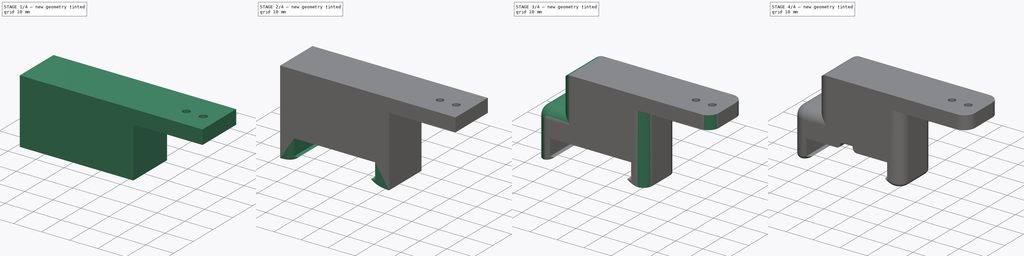
[diagram: build sequence overview — one tinted view per stage of 4, left to right]
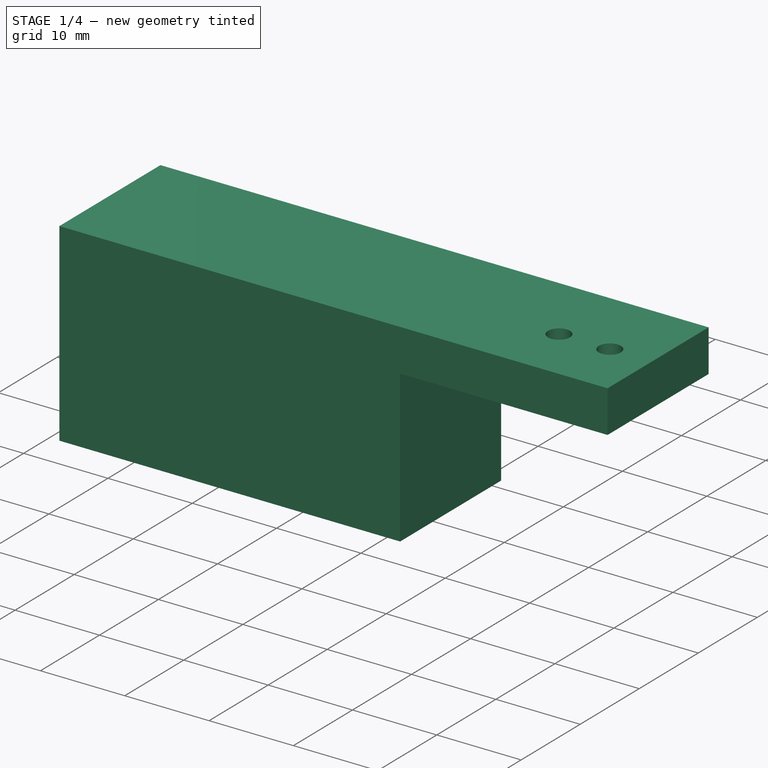
[diagram: stage 1 of 4 — iso view after this stage's code; geometry added in this stage tinted green]
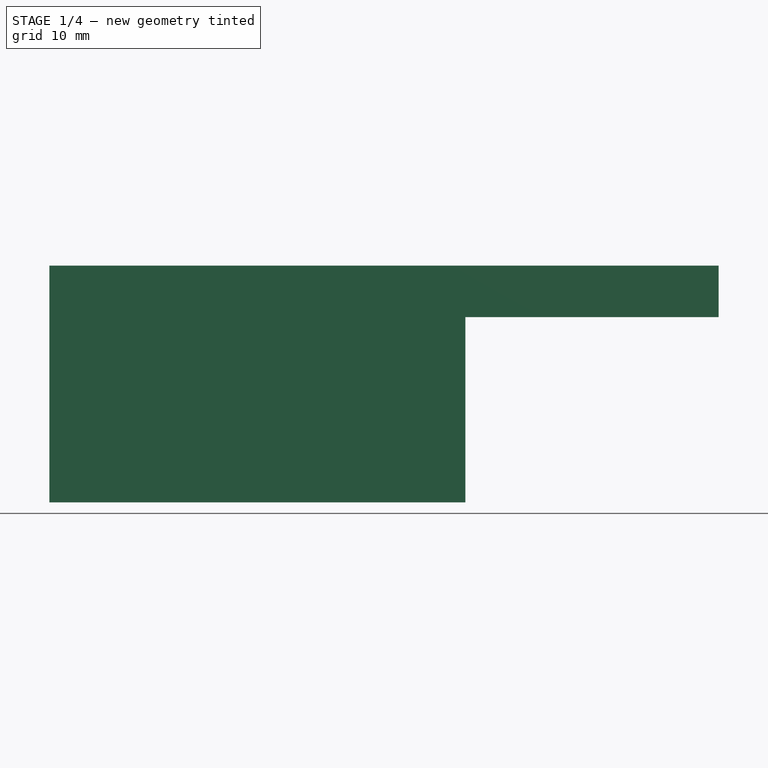
[diagram: stage 1 of 4 — front view after this stage's code; geometry added in this stage tinted green]
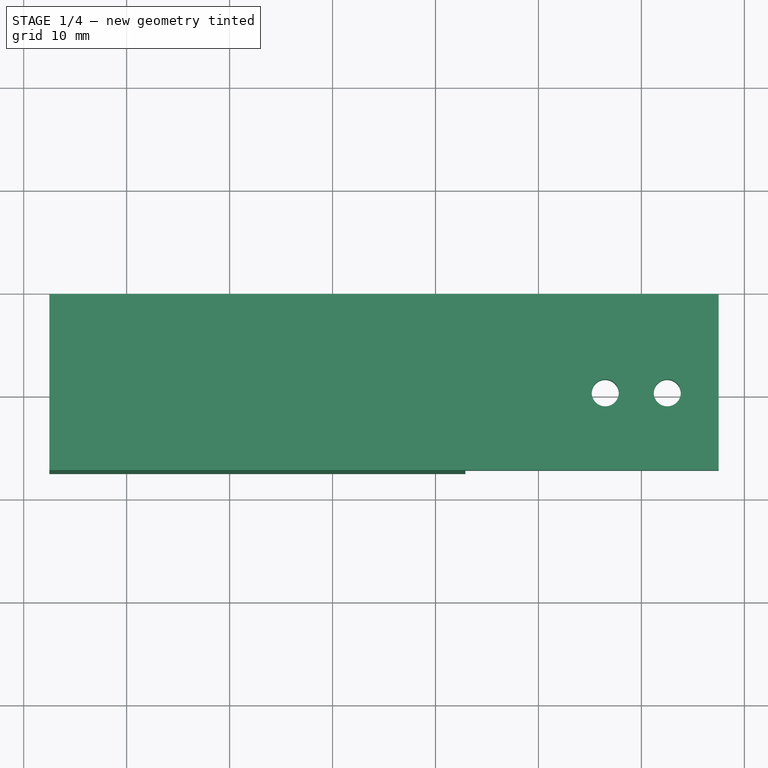
[diagram: stage 1 of 4 — top view after this stage's code; geometry added in this stage tinted green]
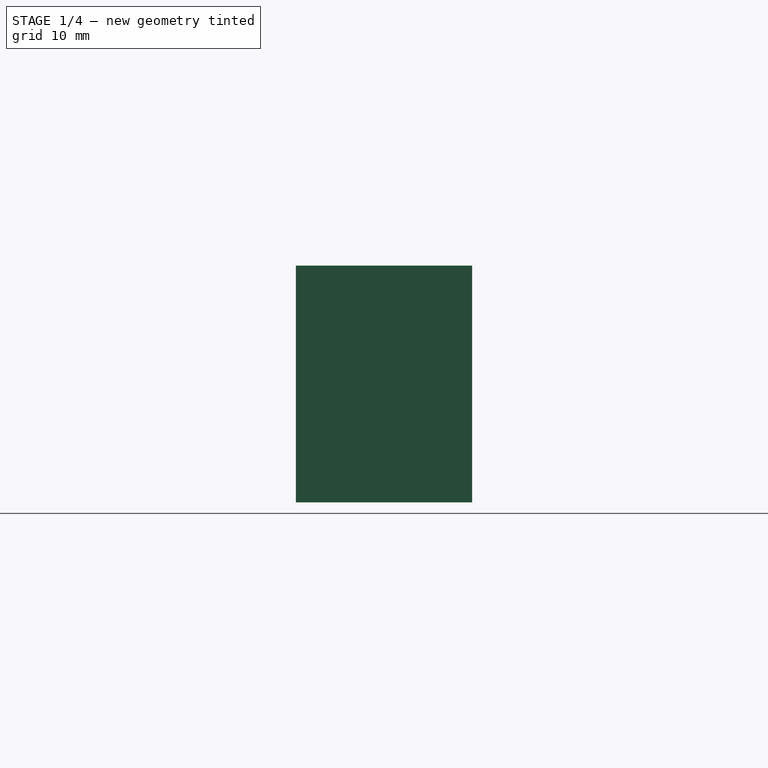
[diagram: stage 1 of 4 — right view after this stage's code; geometry added in this stage tinted green]
FCSTD DOCUMENT  (FreeCAD 2024.1R35694 (Git))
Label: Cable-Clip
License: All rights reserved
LicenseURL: https://en.wikipedia.org/wiki/All_rights_reserved
objects: Sketcher::SketchObject×8, PartDesign::Pad×5, PartDesign::Pocket×3, PartDesign::Fillet×3, Spreadsheet::Sheet×1, PartDesign::Body×1
note: 31 computed .brp shape members not serialized (recipe doc carries the construction recipe); baked Part::Feature solids carry a one-line shape summary decoded from their .brp

FEATURE [Sketcher::SketchObject] Sketch
  FullyConstrained = false
  MapMode = 5
  Support = -> [XY_Plane]
  sketch-geometry (4):
    g0: Circle CenterX=-13.5123 CenterY=0 CenterZ=0 NormalX=0 NormalY=0 NormalZ=1 AngleXU=0 Radius=1.3125
    g1: Circle CenterX=-7.48733 CenterY=0 CenterZ=0 NormalX=0 NormalY=0 NormalZ=1 AngleXU=0 Radius=1.3125
    g2: LineSegment StartX=-14.8248 StartY=0 StartZ=0 EndX=-6.17483 EndY=0 EndZ=0
    g3: GeomPoint X=-10.4998 Y=0 Z=0
  constraints (10):
    c: PointOnObject(g0,g-1)
    c: PointOnObject(g1,g-1)
    c: Distance(g0,g1) = 3.4
    c: Equal(g0,g1)
    c: Distance(g2) = 8.65
    c: PointOnObject(g2,g-1)
    c: Symmetric(g0,g1,g3)
    c: Symmetric(g2,g2,g3)
    c: PointOnObject(g2,g0)
    c: DistanceX(g0,g1) = 6.025
FEATURE [Sketcher::SketchObject] Sketch002
  ExternalGeometry = -> [Sketch]
  FullyConstrained = false
  MapMode = 5
  Support = -> [XY_Plane]
  expr: Constraints[34] = <<Spreadsheet>>.offset_x
  expr: Constraints[37] = <<Spreadsheet>>.offset_y
  sketch-geometry (23):
    g0: LineSegment StartX=-32.3035 StartY=7.06944 StartZ=0 EndX=-62.3035 EndY=7.06944 EndZ=0
    g1: LineSegment StartX=-62.3035 StartY=7.06944 StartZ=0 EndX=-62.3035 EndY=-6.93056 EndZ=0
    g2: LineSegment StartX=-62.3035 StartY=-6.93056 StartZ=0 EndX=-32.3035 EndY=-6.93056 EndZ=0
    g3: LineSegment StartX=-32.3035 StartY=-6.93056 StartZ=0 EndX=-32.3035 EndY=7.06944 EndZ=0
    g4: LineSegment StartX=-32.3035 StartY=7.63887 StartZ=0 EndX=-32.3035 EndY=-7.5 EndZ=0
    g5: LineSegment StartX=-32.3035 StartY=-7.5 StartZ=0 EndX=-27.0998 EndY=-7.5 EndZ=0
    g6: LineSegment StartX=-27.0998 StartY=-7.5 StartZ=0 EndX=-27.0998 EndY=7.63887 EndZ=0
    g7: LineSegment StartX=-27.0998 StartY=7.63887 StartZ=0 EndX=-32.3035 EndY=7.63887 EndZ=0
    g8: LineSegment StartX=-62.3035 StartY=7.63887 StartZ=0 EndX=-67.5072 EndY=7.63887 EndZ=0
    g9: LineSegment StartX=-67.5072 StartY=7.63887 StartZ=0 EndX=-67.5072 EndY=-7.5 EndZ=0
    g10: LineSegment StartX=-67.5072 StartY=-7.5 StartZ=0 EndX=-62.3035 EndY=-7.5 EndZ=0
    g11: LineSegment StartX=-62.3035 StartY=-7.5 StartZ=0 EndX=-62.3035 EndY=7.63887 EndZ=0
    g12: GeomPoint X=-32.3035 Y=0.0694369 Z=0
    g13: LineSegment StartX=-10.4998 StartY=0 StartZ=0 EndX=-27.0998 EndY=0 EndZ=0
    g14: LineSegment StartX=-27.0998 StartY=0 StartZ=0 EndX=-27.0998 EndY=-7.5 EndZ=0
    g15: LineSegment StartX=-67.5072 StartY=7.63887 StartZ=0 EndX=-67.5072 EndY=-7.5 EndZ=0
    g16: LineSegment StartX=-67.5072 StartY=-7.5 StartZ=0 EndX=-27.0998 EndY=-7.5 EndZ=0
    g17: LineSegment StartX=-27.0998 StartY=-7.5 StartZ=0 EndX=-27.0998 EndY=7.63887 EndZ=0
    g18: LineSegment StartX=-27.0998 StartY=7.63887 StartZ=0 EndX=-67.5072 EndY=7.63887 EndZ=0
    g19: LineSegment StartX=-67.5072 StartY=-7.5 StartZ=0 EndX=-67.5072 EndY=-7.5 EndZ=0
    g20: LineSegment StartX=-27.0998 StartY=-7.5 StartZ=0 EndX=-27.0998 EndY=-7.5 EndZ=0
    g21: LineSegment StartX=-62.3035 StartY=7.06944 StartZ=0 EndX=-62.3035 EndY=7.63887 EndZ=0
    g22: LineSegment StartX=-62.3035 StartY=-6.93056 StartZ=0 EndX=-62.3035 EndY=-7.5 EndZ=0
  constraints (63):
    c: Coincident(g0,g1)
    c: Coincident(g1,g2)
    c: Coincident(g2,g3)
    c: Coincident(g3,g0)
    c: Horizontal(g0)
    c: Horizontal(g2)
    c: Vertical(g1)
    c: Vertical(g3)
    c: Distance(g1,g3) = 30
    c: DistanceY(g1,g1) = 14
    c: Coincident(g4,g5)
    c: Coincident(g5,g6)
    c: Coincident(g6,g7)
    c: Coincident(g7,g4)
    c: Vertical(g4)
    c: Vertical(g6)
    c: Horizontal(g5)
    c: Horizontal(g7)
    c: Coincident(g8,g9)
    c: Coincident(g9,g10)
    c: Coincident(g10,g11)
    c: Coincident(g11,g8)
    c: Horizontal(g8)
    c: Horizontal(g10)
    c: Vertical(g9)
    c: Vertical(g11)
    c: PointOnObject(g8,g1)
    c: Equal(g7,g8)
    c: Equal(g6,g9)
    c: Symmetric(g4,g4,g12)
    c: Symmetric(g2,g0,g12)
    c: PointOnObject(g4,g8)
    c: Coincident(g13,g-3)
    c: PointOnObject(g13,g-1)
    c: DistanceX(g13,g13) = 16.6
    c: Vertical(g14)
    c: Coincident(g14,g13)
    c: DistanceY(g14,g14) = 7.5
    c: Coincident(g15,g16)
    c: Coincident(g16,g17)
    c: Coincident(g17,g18)
    c: Coincident(g18,g15)
    c: Vertical(g15)
    c: Vertical(g17)
    c: Horizontal(g16)
    c: Horizontal(g18)
    c: Coincident(g16,g14)
    c: Horizontal(g19)
    c: Coincident(g19,g9)
    c: PointOnObject(g19,g15)
    c: Horizontal(g20)
    c: Coincident(g20,g5)
    c: PointOnObject(g20,g17)
    c: Equal(g19,g20)
    c: Vertical(g21)
    c: Coincident(g21,g0)
    c: PointOnObject(g21,g18)
    c: Vertical(g22)
    c: Coincident(g22,g1)
    c: PointOnObject(g22,g16)
    c: Equal(g22,g21)
    c: PointOnObject(g17,g7)
    c: PointOnObject(g14,g6)
FEATURE [Spreadsheet::Sheet] Spreadsheet
  cells = B4(offset_x)=16.6; C4='offset_x; B5(offset_y)=7.5; C5='offset_y
FEATURE [Sketcher::SketchObject] Sketch003
  ExternalGeometry = -> [Sketch002,Sketch]
  FullyConstrained = false
  MapMode = 5
  Support = -> [XY_Plane]
  expr: Constraints[12] = <<Spreadsheet>>.offset_y
  expr: Constraints[13] = <<Spreadsheet>>.offset_x
  sketch-geometry (9):
    g0: LineSegment StartX=-67.5072 StartY=9.60875 StartZ=0 EndX=-67.5072 EndY=-7.5 EndZ=0
    g1: LineSegment StartX=-67.5072 StartY=-7.5 StartZ=0 EndX=-27.0998 EndY=-7.5 EndZ=0
    g2: LineSegment StartX=-27.0998 StartY=-7.5 StartZ=0 EndX=-27.0998 EndY=9.60875 EndZ=0
    g3: LineSegment StartX=-27.0998 StartY=9.60875 StartZ=0 EndX=-67.5072 EndY=9.60875 EndZ=0
    g4: LineSegment StartX=-10.4998 StartY=0 StartZ=0 EndX=-10.4998 EndY=-7.5 EndZ=0
    g5: LineSegment StartX=-10.4998 StartY=-7.5 StartZ=0 EndX=-27.0998 EndY=-7.5 EndZ=0
    g6: GeomPoint X=-67.5072 Y=0.0694369 Z=0
    g7: LineSegment StartX=-67.5072 StartY=0.0694369 StartZ=0 EndX=-67.5072 EndY=0.0694369 EndZ=0
    g8: LineSegment StartX=-27.0998 StartY=1.37707 StartZ=0 EndX=-27.0998 EndY=1.37707 EndZ=0
  constraints (23):
    c: Coincident(g0,g1)
    c: Coincident(g1,g2)
    c: Coincident(g2,g3)
    c: Coincident(g3,g0)
    c: Vertical(g0)
    c: Vertical(g2)
    c: Horizontal(g1)
    c: Horizontal(g3)
    c: Vertical(g4)
    c: Coincident(g4,g-11)
    c: Horizontal(g5)
    c: Coincident(g5,g4)
    c: DistanceY(g4,g4) = 7.5
    c: DistanceX(g5,g5) = 16.6
    c: Coincident(g1,g5)
    c: Symmetric(g-5,g-4,g6)
    c: Horizontal(g7)
    c: Coincident(g7,g6)
    c: PointOnObject(g7,g0)
    c: Horizontal(g8)
    c: PointOnObject(g8,g-8)
    c: PointOnObject(g8,g2)
    c: Equal(g8,g7)
FEATURE [Sketcher::SketchObject] Sketch004  label="base plate"
  ExternalGeometry = -> [Sketch,Sketch003]
  FullyConstrained = true
  MapMode = 5
  Support = -> [XY_Plane]
  expr: Constraints[8] = <<Spreadsheet>>.offset_y
  sketch-geometry (4):
    g0: LineSegment StartX=-67.5072 StartY=9.60875 StartZ=0 EndX=-67.5072 EndY=-7.5 EndZ=0
    g1: LineSegment StartX=-67.5072 StartY=-7.5 StartZ=0 EndX=-2.49983 EndY=-7.5 EndZ=0
    g2: LineSegment StartX=-2.49983 StartY=-7.5 StartZ=0 EndX=-2.49983 EndY=9.60875 EndZ=0
    g3: LineSegment StartX=-2.49983 StartY=9.60875 StartZ=0 EndX=-67.5072 EndY=9.60875 EndZ=0
  constraints (11):
    c: Coincident(g0,g1)
    c: Coincident(g1,g2)
    c: Coincident(g2,g3)
    c: Coincident(g3,g0)
    c: Vertical(g0)
    c: Vertical(g2)
    c: Horizontal(g1)
    c: Horizontal(g3)
    c: Distance(g-3,g1) = 7.5
    c: Distance(g-3,g2) = 8
    c: Coincident(g0,g-4)
FEATURE [PartDesign::Pad] Pad
  Direction = (0,0,1)
  Length = 5
  Length2 = 10
  Profile = -> Sketch004
  ReferenceAxis = -> Sketch004 [N_Axis]
  Refine = true
  Type = 0
FEATURE [PartDesign::Pad] Pad001
  BaseFeature = -> Pad
  Direction = (0,0,1)
  Length = 18
  Length2 = 10
  Profile = -> Sketch003
  ReferenceAxis = -> Sketch003 [N_Axis]
  Refine = true
  Reversed = true
  Type = 0
FEATURE [PartDesign::Pocket] Pocket
  BaseFeature = -> Pad001
  Direction = (0,0,-1)
  Length = 5
  Length2 = 5
  Profile = -> Sketch
  ReferenceAxis = -> Sketch [N_Axis]
  Refine = true
  Reversed = true
  Type = 2
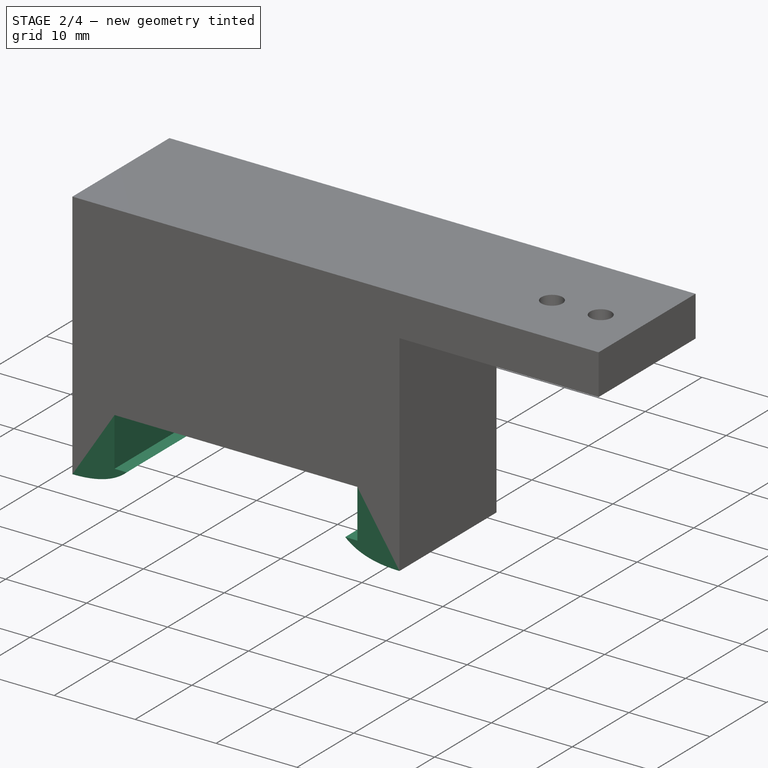
[diagram: stage 2 of 4 — iso view after this stage's code; geometry added in this stage tinted green]
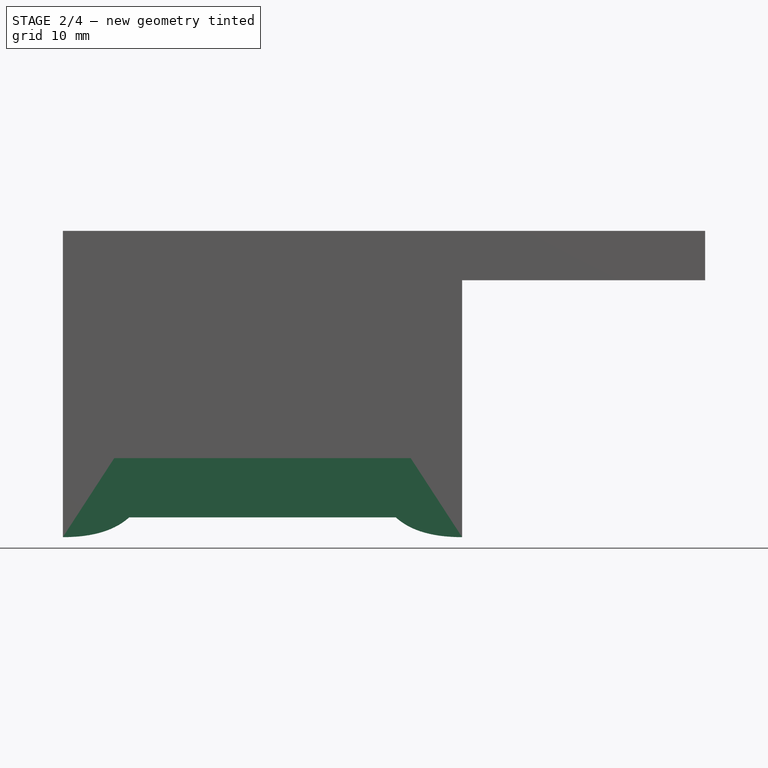
[diagram: stage 2 of 4 — front view after this stage's code; geometry added in this stage tinted green]
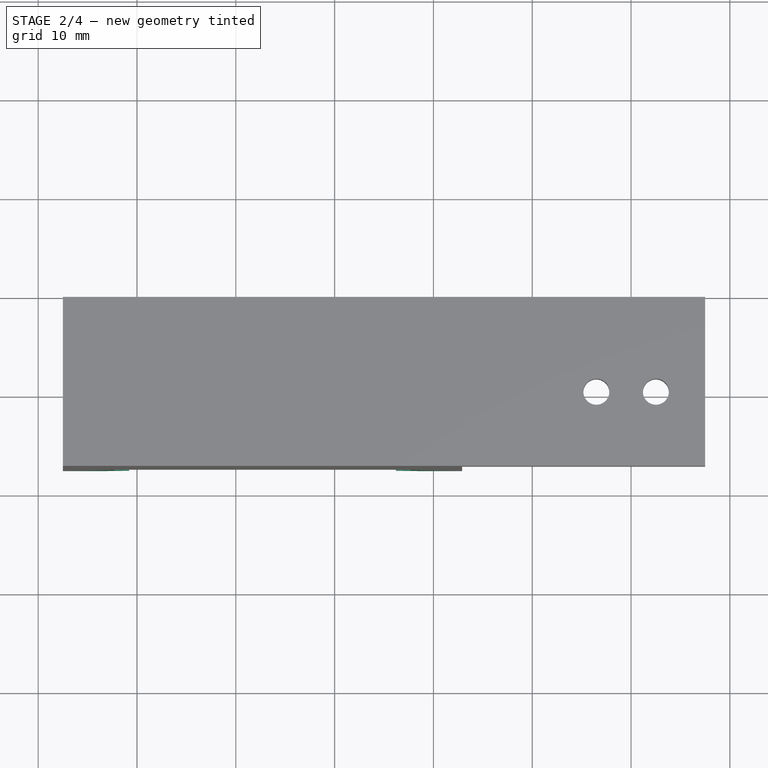
[diagram: stage 2 of 4 — top view after this stage's code; geometry added in this stage tinted green]
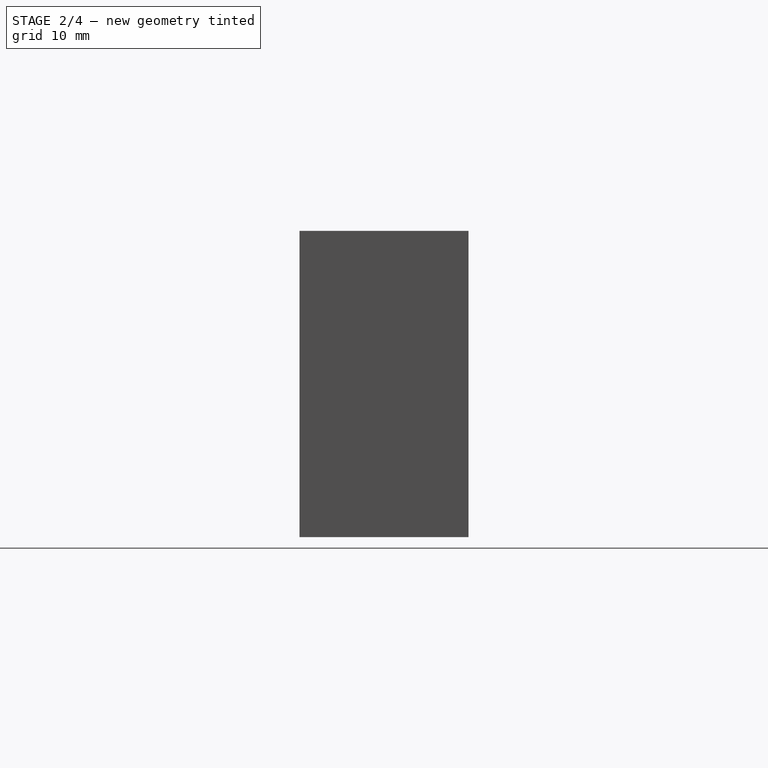
[diagram: stage 2 of 4 — right view after this stage's code; geometry added in this stage tinted green]
FEATURE [PartDesign::Pad] Pad002
  BaseFeature = -> Pocket
  Direction = (0,0,1)
  Length = 24
  Length2 = 10
  Profile = -> Sketch002
  ReferenceAxis = -> Sketch002 [N_Axis]
  Refine = true
  Reversed = true
  Type = 0
FEATURE [Sketcher::SketchObject] Sketch005
  ExternalGeometry = -> [Pad002,Sketch002]
  FullyConstrained = true
  MapMode = 5
  Support = -> [XY_Plane]
  sketch-geometry (4):
    g0: LineSegment StartX=-67.5072 StartY=9.60875 StartZ=0 EndX=-67.5072 EndY=7.63887 EndZ=0
    g1: LineSegment StartX=-67.5072 StartY=7.63887 StartZ=0 EndX=-27.0998 EndY=7.63887 EndZ=0
    g2: LineSegment StartX=-27.0998 StartY=7.63887 StartZ=0 EndX=-27.0998 EndY=9.60875 EndZ=0
    g3: LineSegment StartX=-27.0998 StartY=9.60875 StartZ=0 EndX=-67.5072 EndY=9.60875 EndZ=0
  constraints (10):
    c: Coincident(g0,g1)
    c: Coincident(g1,g2)
    c: Coincident(g2,g3)
    c: Coincident(g3,g0)
    c: Vertical(g0)
    c: Vertical(g2)
    c: Horizontal(g1)
    c: Horizontal(g3)
    c: Coincident(g0,g-4)
    c: Coincident(g1,g-7)
FEATURE [PartDesign::Pad] Pad003
  BaseFeature = -> Pad002
  Direction = (0,0,1)
  Length = 26
  Length2 = 10
  Profile = -> Sketch005
  ReferenceAxis = -> Sketch005 [N_Axis]
  Refine = true
  Reversed = true
  Type = 3
  UpToFace = -> Pad002 [Face12]
FEATURE [Sketcher::SketchObject] Sketch006
  ExternalGeometry = -> [Pad003]
  FullyConstrained = false
  MapMode = 5
  Placement = pos=(-1e-16,-7.5,-3e-16) rot=(1,0,0;1.5708rad)
  Support = -> [Pad003]
  sketch-geometry (20):
    g0: LineSegment StartX=-67.5072 StartY=-24 StartZ=0 EndX=-67.5072 EndY=-26 EndZ=0
    g1: LineSegment StartX=-67.5072 StartY=-24 StartZ=0 EndX=-62.3035 EndY=-24 EndZ=0
    g2: LineSegment StartX=-62.3035 StartY=-24 StartZ=0 EndX=-60.8035 EndY=-24 EndZ=0
    g3: Circle CenterX=-67.5072 CenterY=-26 CenterZ=0 NormalX=0 NormalY=0 NormalZ=1 AngleXU=0 Radius=1
    g4: Circle CenterX=-63 CenterY=-26 CenterZ=0 NormalX=0 NormalY=0 NormalZ=1 AngleXU=0 Radius=1
    g5: Circle CenterX=-60.8035 CenterY=-24 CenterZ=0 NormalX=0 NormalY=0 NormalZ=1 AngleXU=0 Radius=1
    g6: BSplineCurve PolesCount=3 KnotsCount=2 Degree=2 IsPeriodic=0
    g7: GeomPoint X=-67.5072 Y=-26 Z=0
    g8: GeomPoint X=-60.8035 Y=-24 Z=0
    g9: GeomPoint X=-47.3035 Y=-24 Z=0
    g10: LineSegment StartX=-47.3035 StartY=-24 StartZ=0 EndX=-47.3035 EndY=-27.0003 EndZ=0
    g11: LineSegment StartX=-27.0998 StartY=-24 StartZ=0 EndX=-27.0998 EndY=-26 EndZ=0
    g12: LineSegment StartX=-27.0998 StartY=-24 StartZ=0 EndX=-32.3035 EndY=-24 EndZ=0
    g13: LineSegment StartX=-32.3035 StartY=-24 StartZ=0 EndX=-33.8035 EndY=-24 EndZ=0
    g14: Circle CenterX=-27.0998 CenterY=-26 CenterZ=0 NormalX=0 NormalY=0 NormalZ=1 AngleXU=0 Radius=1
    g15: Circle CenterX=-31.607 CenterY=-26 CenterZ=0 NormalX=0 NormalY=0 NormalZ=1 AngleXU=0 Radius=1
    g16: Circle CenterX=-33.8035 CenterY=-24 CenterZ=0 NormalX=0 NormalY=0 NormalZ=1 AngleXU=0 Radius=1
    g17: BSplineCurve PolesCount=3 KnotsCount=2 Degree=2 IsPeriodic=0
    g18: GeomPoint X=-27.0998 Y=-26 Z=0
    g19: GeomPoint X=-33.8035 Y=-24 Z=0
  constraints (35):
    c: Vertical(g0)
    c: Coincident(g0,g-3)
    c: DistanceY(g0,g0) = 2
    c: Coincident(g1,g0)
    c: Coincident(g1,g-3)
    c: Coincident(g2,g1)
    c: Horizontal(g2)
    c: DistanceX(g2,g2) = 1.5
    c: Weight(g3) = 1
    c: Coincident(g6,g0)
    c: Equal(g3,g4)
    c: Equal(g3,g5)
    c: Coincident(g6,g2)
    c: InternalAlignment(g3,g6)
    c: InternalAlignment(g4,g6)
    c: InternalAlignment(g5,g6)
    c: InternalAlignment(g7,g6)
    c: InternalAlignment(g8,g6)
    c: Symmetric(g1,g-4,g9)
    c: Vertical(g10)
    c: Coincident(g10,g9)
    c: Vertical(g11)
    c: Coincident(g12,g11)
    c: Coincident(g13,g12)
    c: Horizontal(g13)
    c: Weight(g14) = 1
    c: Coincident(g17,g11)
    c: Equal(g14,g15)
    c: Equal(g14,g16)
    c: Coincident(g17,g13)
    c: InternalAlignment(g14,g17)
    c: InternalAlignment(g15,g17)
    c: InternalAlignment(g16,g17)
    c: InternalAlignment(g18,g17)
    c: InternalAlignment(g19,g17)
FEATURE [PartDesign::Pad] Pad004
  BaseFeature = -> Pad003
  Direction = (0,1,0)
  Length = 9
  Length2 = 10
  Profile = -> Sketch006
  ReferenceAxis = -> Pad003 [Edge33]
  Refine = true
  Type = 3
  UpToFace = -> Pad003 [Face12]
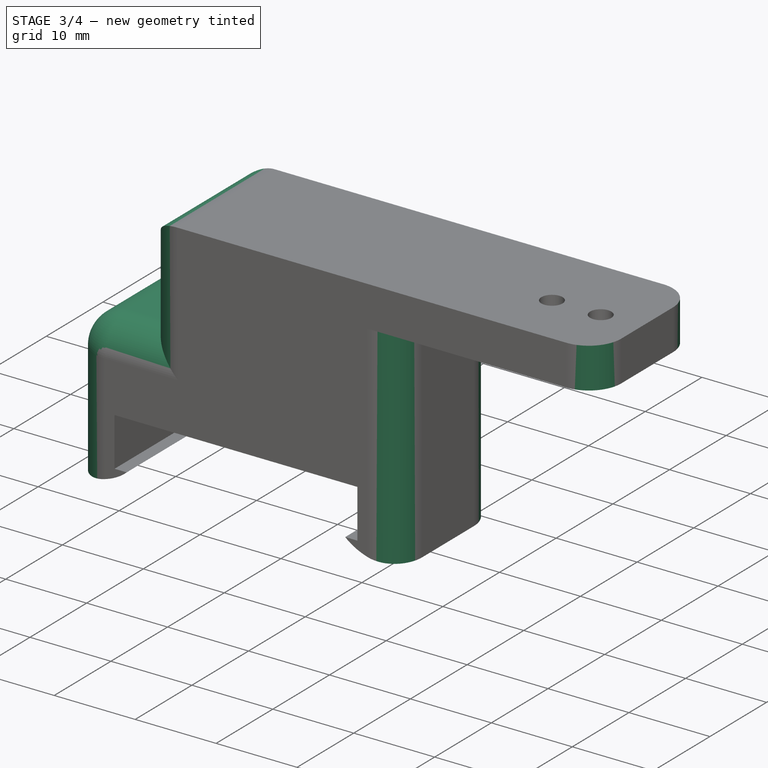
[diagram: stage 3 of 4 — iso view after this stage's code; geometry added in this stage tinted green]
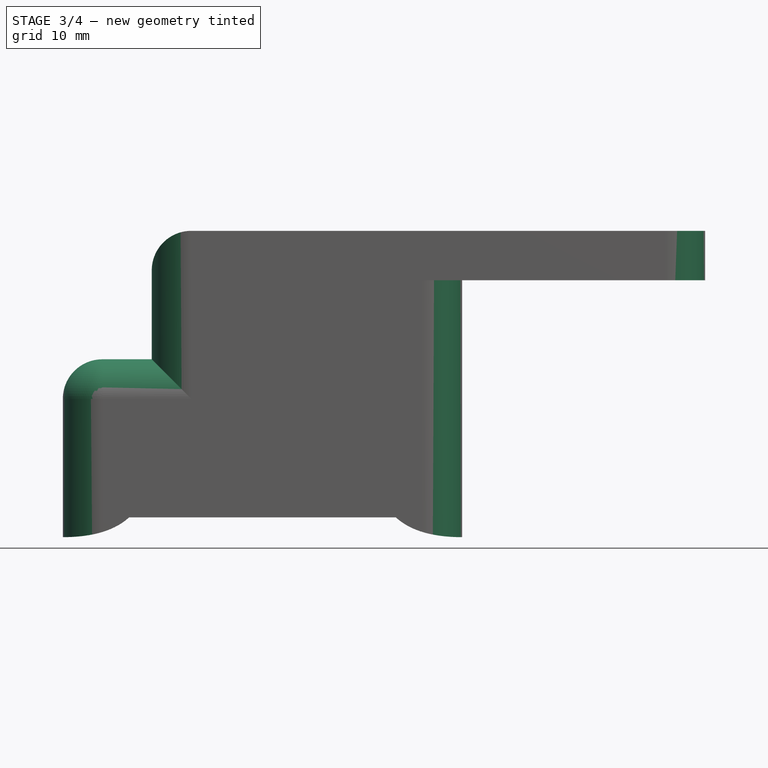
[diagram: stage 3 of 4 — front view after this stage's code; geometry added in this stage tinted green]
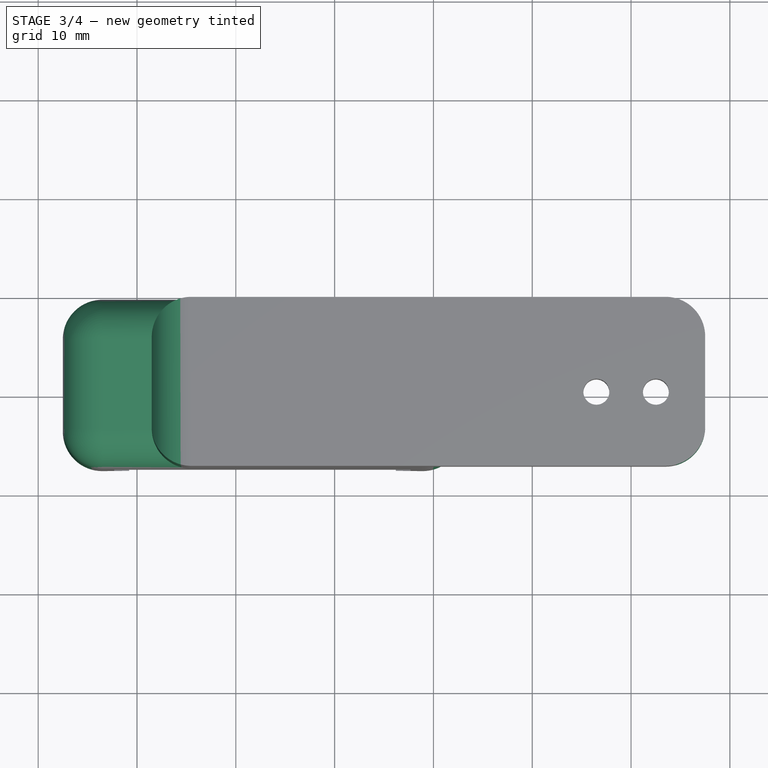
[diagram: stage 3 of 4 — top view after this stage's code; geometry added in this stage tinted green]
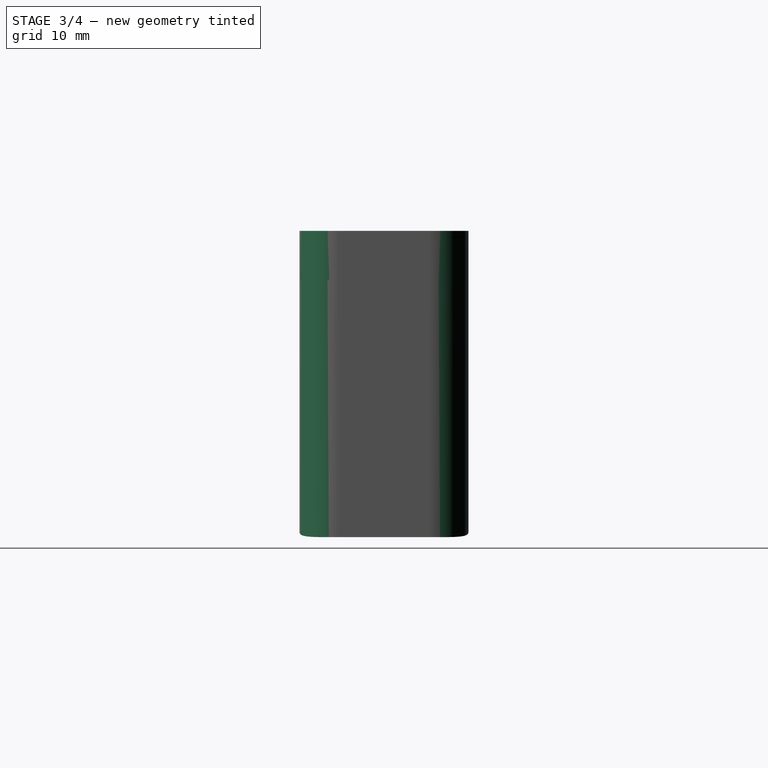
[diagram: stage 3 of 4 — right view after this stage's code; geometry added in this stage tinted green]
FEATURE [Sketcher::SketchObject] Sketch007
  FullyConstrained = false
  MapMode = 5
  Placement = pos=(0,0,-18) rot=(1,0,0;3.14159rad)
  sketch-geometry (6):
    g0: LineSegment StartX=-49.5535 StartY=7.5 StartZ=0 EndX=-49.5535 EndY=-7.63887 EndZ=0
    g1: LineSegment StartX=-49.5535 StartY=-7.63887 StartZ=0 EndX=-45.0535 EndY=-7.63887 EndZ=0
    g2: LineSegment StartX=-45.0535 StartY=-7.63887 StartZ=0 EndX=-45.0535 EndY=7.5 EndZ=0
    g3: LineSegment StartX=-45.0535 StartY=7.5 StartZ=0 EndX=-49.5535 EndY=7.5 EndZ=0
    g4: LineSegment StartX=-62.3035 StartY=-0.0694369 StartZ=0 EndX=-49.5535 EndY=-0.0694369 EndZ=0
    g5: LineSegment StartX=-45.0535 StartY=-0.0694369 StartZ=0 EndX=-32.3035 EndY=-0.0694369 EndZ=0
  constraints (14):
    c: Coincident(g0,g1)
    c: Coincident(g1,g2)
    c: Coincident(g2,g3)
    c: Coincident(g3,g0)
    c: Vertical(g0)
    c: Vertical(g2)
    c: Horizontal(g1)
    c: Horizontal(g3)
    c: DistanceX(g3,g3) = 4.5
    c: Horizontal(g4)
    c: PointOnObject(g5,g2)
    c: Symmetric(g0,g0,g4)
    c: Symmetric(g2,g1,g5)
    c: Equal(g4,g5)
FEATURE [Sketcher::SketchObject] Sketch008
  ExternalGeometry = -> [Pad004]
  FullyConstrained = true
  MapMode = 5
  Placement = pos=(0,9.60875,3e-16) rot=(0,0.707107,0.707107;3.14159rad)
  Support = -> [Pad004]
  sketch-geometry (4):
    g0: LineSegment StartX=58.5072 StartY=5 StartZ=0 EndX=58.5072 EndY=-8 EndZ=0
    g1: LineSegment StartX=58.5072 StartY=-8 StartZ=0 EndX=67.5072 EndY=-8 EndZ=0
    g2: LineSegment StartX=67.5072 StartY=-8 StartZ=0 EndX=67.5072 EndY=5 EndZ=0
    g3: LineSegment StartX=67.5072 StartY=5 StartZ=0 EndX=58.5072 EndY=5 EndZ=0
  constraints (12):
    c: Coincident(g0,g1)
    c: Coincident(g1,g2)
    c: Coincident(g2,g3)
    c: Coincident(g3,g0)
    c: Vertical(g0)
    c: Vertical(g2)
    c: Horizontal(g1)
    c: Horizontal(g3)
    c: PointOnObject(g1,g-3)
    c: DistanceX(g1,g1) = 9
    c: Distance(g-3,g1) = 18
    c: PointOnObject(g-3,g3)
FEATURE [PartDesign::Pocket] Pocket002
  BaseFeature = -> Pad004
  Direction = (0,-1,2e-16)
  Length = 0
  Length2 = 5
  Profile = -> Sketch008
  ReferenceAxis = -> Sketch008 [N_Axis]
  Refine = true
  Type = 3
  UpToFace = -> Pad004 [Face17]
FEATURE [PartDesign::Fillet] Fillet
  Base = -> Pocket002 [Edge46,Edge22,Edge44,Edge37,Edge50,Edge24,Edge23,Edge17,Edge15,Edge48,Edge34,Edge47]
  BaseFeature = -> Pocket002
  Radius = 4
  Refine = true
  SupportTransform = false
  UseAllEdges = false
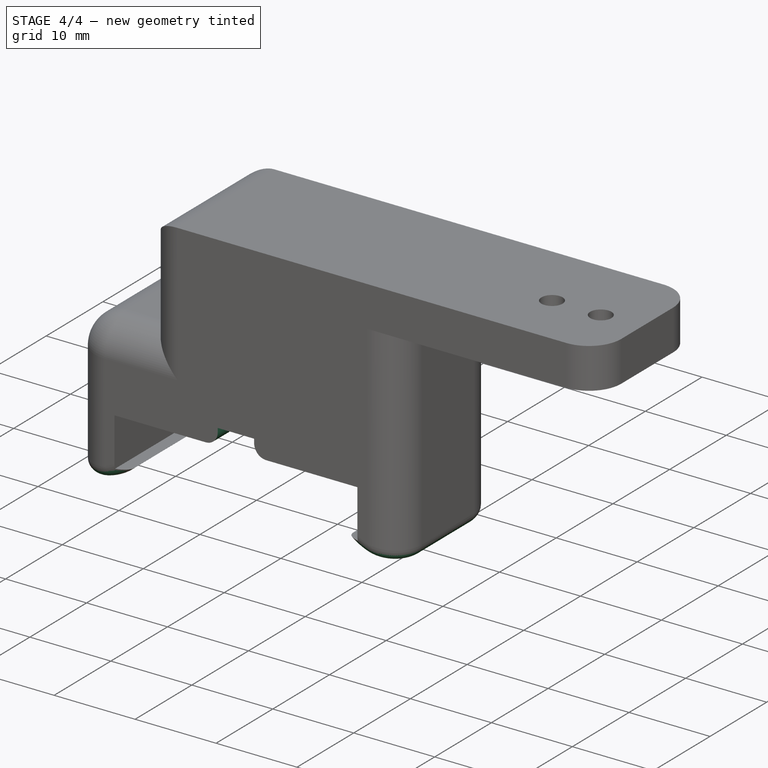
[diagram: stage 4 of 4 — iso view after this stage's code; geometry added in this stage tinted green]
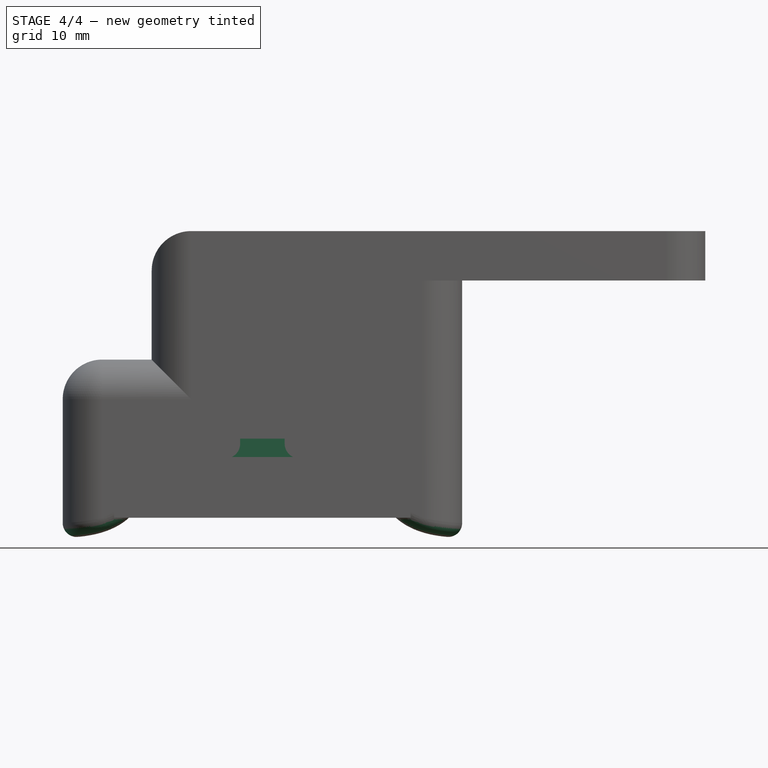
[diagram: stage 4 of 4 — front view after this stage's code; geometry added in this stage tinted green]
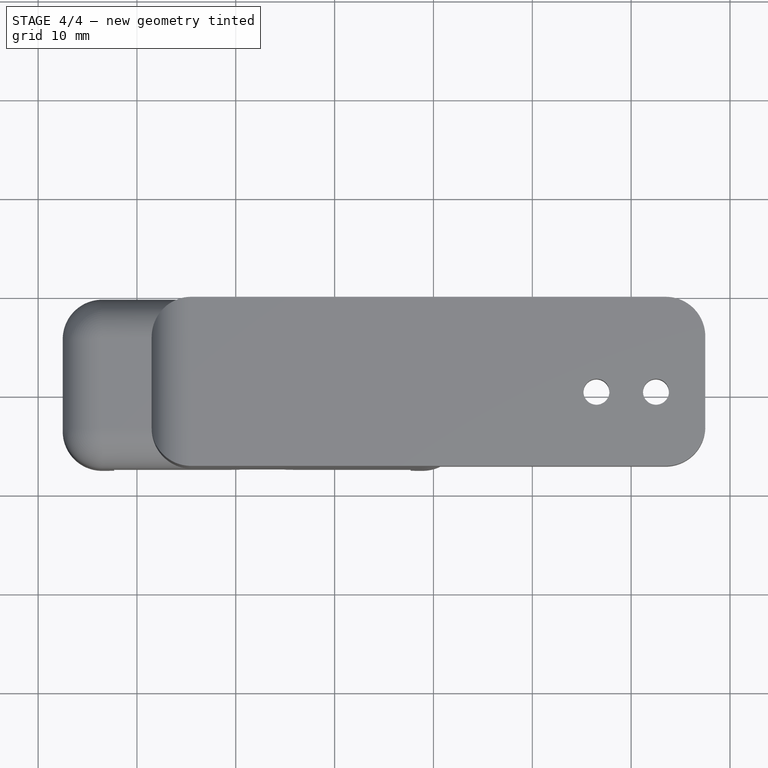
[diagram: stage 4 of 4 — top view after this stage's code; geometry added in this stage tinted green]
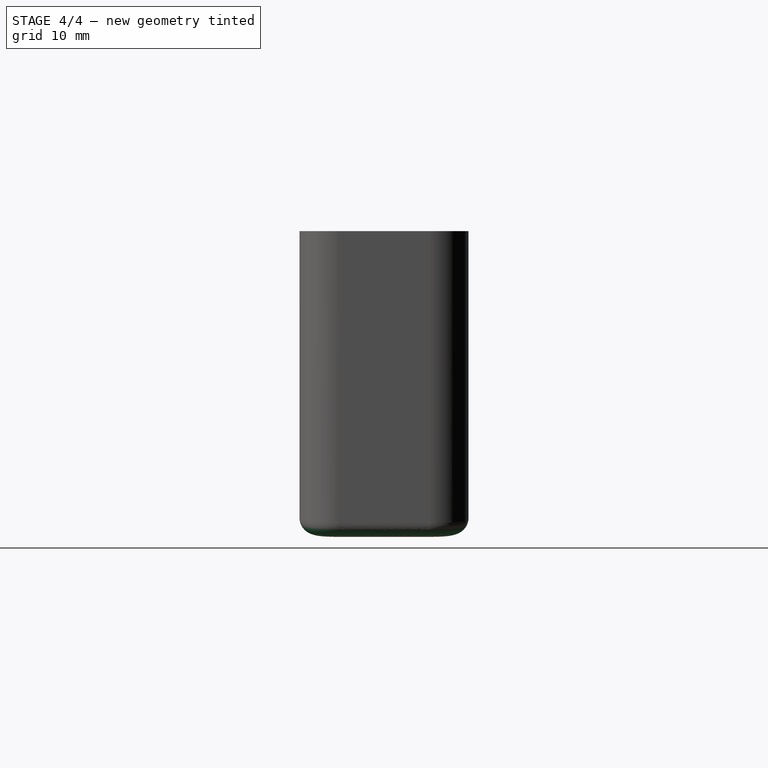
[diagram: stage 4 of 4 — right view after this stage's code; geometry added in this stage tinted green]
FEATURE [PartDesign::Pocket] Pocket001
  BaseFeature = -> Fillet
  Direction = (0,0,1)
  Length = 2
  Length2 = 5
  Profile = -> Sketch007
  ReferenceAxis = -> Sketch007 [N_Axis]
  Refine = true
  Type = 0
FEATURE [PartDesign::Fillet] Fillet002
  Base = -> Pocket001 [Edge62,Edge39]
  BaseFeature = -> Pocket001
  Radius = 1.4
  Refine = true
  SupportTransform = false
  UseAllEdges = false
FEATURE [PartDesign::Fillet] Fillet003
  Base = -> Fillet002 [Edge37,Edge55]
  BaseFeature = -> Fillet002
  Radius = 1.5
  Refine = true
  SupportTransform = false
  UseAllEdges = false
FEATURE [PartDesign::Body] Body
  Group = -> [Sketch,Sketch002,Sketch003,Sketch004,Pad,Pad001,Pocket,Pad002,Sketch005,Pad003,Sketch006,Pad004,Sketch008,Pocket002,Fillet,Sketch007,Pocket001,Fillet002,Fillet003]
  Origin = -> Origin
  Tip = -> Pocket002
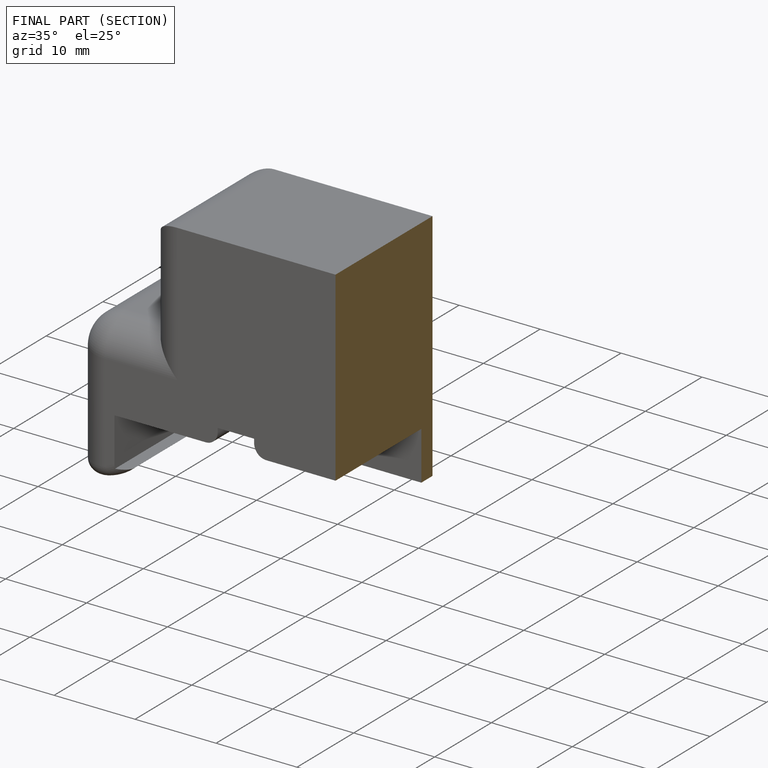
[diagram: finished part — half-section view (interior)]
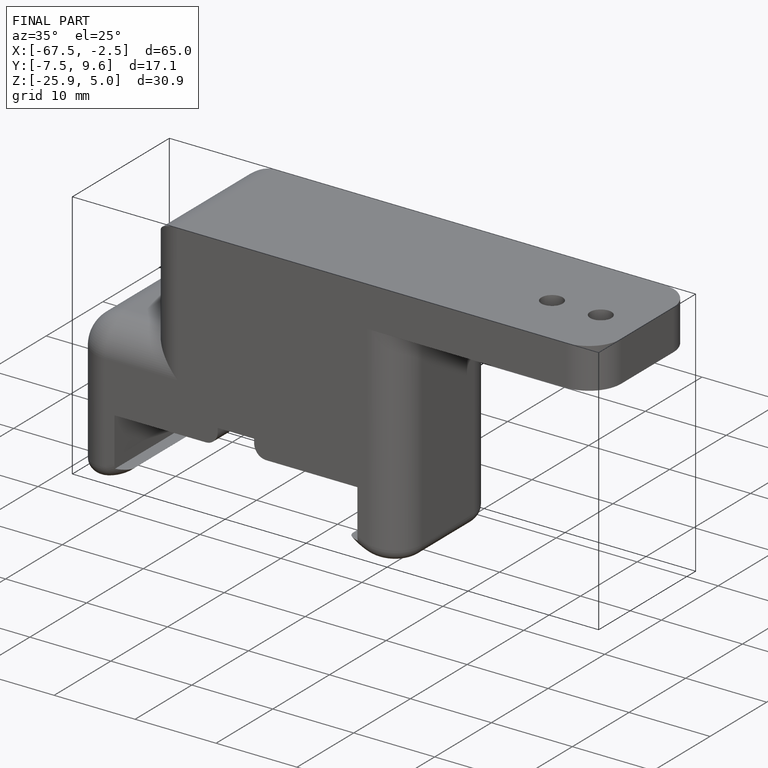
[diagram: finished part — iso view with bounding-box wireframe]
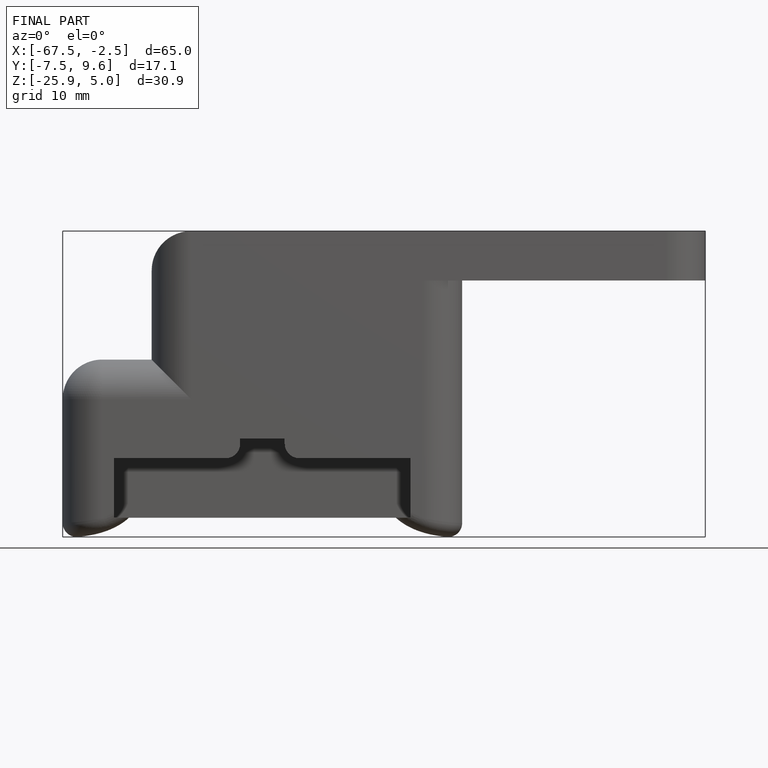
[diagram: finished part — front view with bounding-box wireframe]
